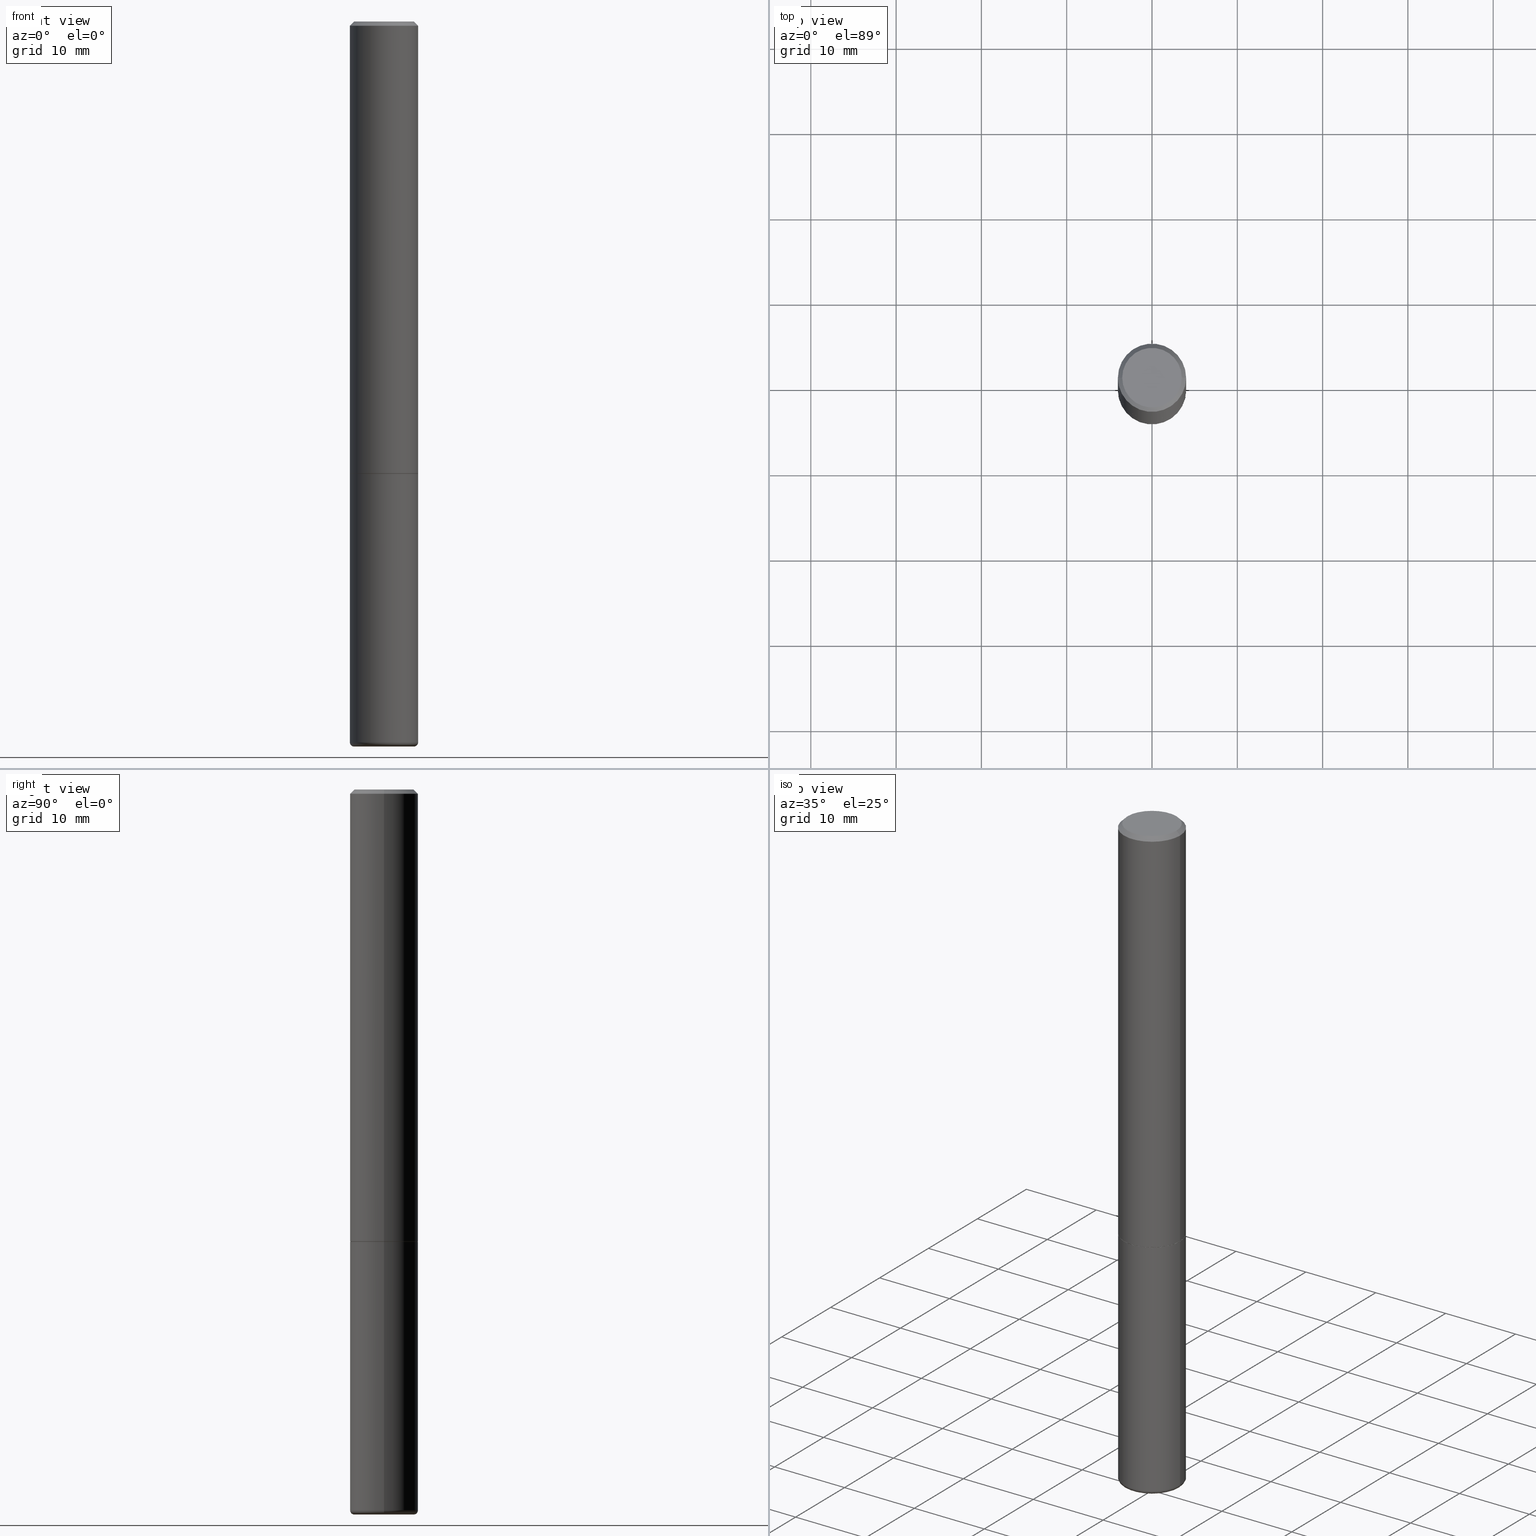
[diagram: canonical four-view strip — front | top / right | iso, engineering-drawing reading convention]
A machine part, canonical four-view strip (front | top / right | iso — engineering-drawing reading convention). The complete STEP part file that produces these views, byte-faithful:
ISO-10303-21;
HEADER;
FILE_DESCRIPTION (( 'STEP AP203' ),
    '1' );
FILE_NAME ('74387.STEP',
    '2024-03-06T15:10:27',
    ( '' ),
    ( '' ),
    'SwSTEP 2.0',
    'SolidWorks 2023',
    '' );
FILE_SCHEMA (( 'CONFIG_CONTROL_DESIGN' ));
ENDSEC;

DATA;
#1 = CARTESIAN_POINT ( 'NONE',  ( 0.1378000000000000058, -1.257771237504854589E-14, -3.326799999999999979 ) ) ;
#2 =( CONVERSION_BASED_UNIT ( 'INCH', #288 ) LENGTH_UNIT ( ) NAMED_UNIT ( #185 ) );
#3 = DIRECTION ( 'NONE',  ( -2.445468806185136597E-29, 3.491481338843145583E-15, 1.000000000000000000 ) ) ;
#4 = CYLINDRICAL_SURFACE ( 'NONE', #383, 0.1575000000000000289 ) ;
#5 = CLOSED_SHELL ( 'NONE', ( #405, #257, #64, #170, #386, #207, #240, #52 ) ) ;
#6 = LOCAL_TIME ( 10, 10, 27.00000000000000000, #335 ) ;
#7 = DIRECTION ( 'NONE',  ( 1.000000000000000000, -6.982962677686267499E-15, 4.874794762600771100E-29 ) ) ;
#8 = DIRECTION ( 'NONE',  ( 1.000000000000000000, -6.982962677686268288E-15, 0.000000000000000000 ) ) ;
#9 = LINE ( 'NONE', #318, #348 ) ;
#10 = DIRECTION ( 'NONE',  ( -2.445468806185136597E-29, 3.491481338843145583E-15, 1.000000000000000000 ) ) ;
#11 = ORIENTED_EDGE ( 'NONE', *, *, #253, .F. ) ;
#12 = EDGE_LOOP ( 'NONE', ( #302, #375, #109, #175 ) ) ;
#13 = VERTEX_POINT ( 'NONE', #305 ) ;
#14 = CC_DESIGN_PERSON_AND_ORGANIZATION_ASSIGNMENT ( #176, #49, ( #389 ) ) ;
#15 = ORIENTED_EDGE ( 'NONE', *, *, #253, .T. ) ;
#16 = ORIENTED_EDGE ( 'NONE', *, *, #210, .F. ) ;
#17 = ADVANCED_FACE ( 'NONE', ( #47 ), #177, .T. ) ;
#18 = EDGE_LOOP ( 'NONE', ( #300, #166, #243, #22 ) ) ;
#19 = EDGE_LOOP ( 'NONE', ( #238, #81 ) ) ;
#20 = DATE_AND_TIME ( #414, #80 ) ;
#21 = ORIENTED_EDGE ( 'NONE', *, *, #289, .T. ) ;
#22 = ORIENTED_EDGE ( 'NONE', *, *, #189, .T. ) ;
#23 = VECTOR ( 'NONE', #358, 39.37007874015748143 ) ;
#24 = LOCAL_TIME ( 10, 10, 27.00000000000000000, #171 ) ;
#25 = APPROVAL_DATE_TIME ( #198, #351 ) ;
#26 = CARTESIAN_POINT ( 'NONE',  ( 4.890937612370281041E-31, -6.982962677686302702E-17, -0.02000000000000003511 ) ) ;
#27 = CARTESIAN_POINT ( 'NONE',  ( -0.1574999999999999456, -1.049635530924122081E-14, -3.326799999999999979 ) ) ;
#28 = CLOSED_SHELL ( 'NONE', ( #334, #123, #156, #287, #122, #17 ) ) ;
#29 = CIRCLE ( 'NONE', #384, 0.1575000000000000289 ) ;
#30 = TOROIDAL_SURFACE ( 'NONE', #398, 0.1378000000000000058, 0.01969999999999991203 ) ;
#31 = CC_DESIGN_APPROVAL ( #351, ( #129 ) ) ;
#32 = PERSON ( 'UNSPECIFIED', 'UNSPECIFIED', 'UNSPECIFIED', ('UNSPECIFIED'), ('UNSPECIFIED'), ('UNSPECIFIED') ) ;
#33 = DIRECTION ( 'NONE',  ( 2.438088387897960049E-29, -3.491481338843145188E-15, -1.000000000000000000 ) ) ;
#34 =( NAMED_UNIT ( * ) PLANE_ANGLE_UNIT ( ) SI_UNIT ( $, .RADIAN. ) );
#35 = CARTESIAN_POINT ( 'NONE',  ( 5.102959757866523939E-29, -7.285674109763990928E-15, -2.086699999999999999 ) ) ;
#36 = DIRECTION ( 'NONE',  ( -2.445468806185136597E-29, 3.491481338843145583E-15, 1.000000000000000000 ) ) ;
#37 = DIRECTION ( 'NONE',  ( -0.7071067811865473507, 2.468850131082255483E-15, -0.7071067811865475727 ) ) ;
#38 = CARTESIAN_POINT ( 'NONE',  ( 0.000000000000000000, 0.000000000000000000, 0.000000000000000000 ) ) ;
#39 = DIRECTION ( 'NONE',  ( 1.000000000000000000, -6.982962677686267499E-15, 4.876176775795935232E-29 ) ) ;
#40 = CIRCLE ( 'NONE', #311, 0.1575000000000000011 ) ;
#41 =( LENGTH_UNIT ( ) NAMED_UNIT ( * ) SI_UNIT ( $, .METRE. ) );
#42 = DIRECTION ( 'NONE',  ( -2.445468806185136597E-29, 3.491481338843145583E-15, 1.000000000000000000 ) ) ;
#43 = VERTEX_POINT ( 'NONE', #268 ) ;
#44 = ORIENTED_EDGE ( 'NONE', *, *, #159, .F. ) ;
#45 = DIRECTION ( 'NONE',  ( 1.000000000000000000, -6.982962677686265922E-15, 0.000000000000000000 ) ) ;
#46 = AXIS2_PLACEMENT_3D ( 'NONE', #225, #295, #394 ) ;
#47 = FACE_OUTER_BOUND ( 'NONE', #364, .T. ) ;
#48 = ORIENTED_EDGE ( 'NONE', *, *, #392, .F. ) ;
#49 = PERSON_AND_ORGANIZATION_ROLE ( 'design_supplier' ) ;
#50 = ORIENTED_EDGE ( 'NONE', *, *, #409, .T. ) ;
#51 = COORDINATED_UNIVERSAL_TIME_OFFSET ( 5, 0, .BEHIND. ) ;
#52 = ADVANCED_FACE ( 'NONE', ( #160 ), #157, .F. ) ;
#53 = PRODUCT_DEFINITION_SHAPE ( 'NONE', 'NONE',  #129 ) ;
#54 = ORIENTED_EDGE ( 'NONE', *, *, #56, .F. ) ;
#55 = APPROVAL_DATE_TIME ( #306, #368 ) ;
#56 = EDGE_CURVE ( 'NONE', #337, #404, #247, .T. ) ;
#57 = CARTESIAN_POINT ( 'NONE',  ( -0.1575000000000000289, 1.029986994958724182E-15, -0.02000000000000003511 ) ) ;
#58 = TOROIDAL_SURFACE ( 'NONE', #293, 0.1378000000000000058, 0.01969999999999991203 ) ;
#59 = EDGE_CURVE ( 'NONE', #248, #99, #167, .T. ) ;
#60 = DIRECTION ( 'NONE',  ( -2.445468806185136877E-29, 3.491481338843145188E-15, 1.000000000000000000 ) ) ;
#61 = CIRCLE ( 'NONE', #46, 0.1575000000000000289 ) ;
#62 = FACE_OUTER_BOUND ( 'NONE', #410, .T. ) ;
#63 = DIRECTION ( 'NONE',  ( -2.445468806185136597E-29, 3.491481338843145583E-15, 1.000000000000000000 ) ) ;
#64 = ADVANCED_FACE ( 'NONE', ( #197 ), #101, .T. ) ;
#65 = DIRECTION ( 'NONE',  ( 1.000000000000000000, -6.982962677686267499E-15, 0.000000000000000000 ) ) ;
#66 = EDGE_CURVE ( 'NONE', #211, #404, #61, .T. ) ;
#67 = CARTESIAN_POINT ( 'NONE',  ( -0.1565000000000000002, -6.168376273951211931E-15, -2.086699999999999999 ) ) ;
#68 = DIRECTION ( 'NONE',  ( -2.445468806185136597E-29, 3.491481338843145583E-15, 1.000000000000000000 ) ) ;
#69 = DIRECTION ( 'NONE',  ( 1.000000000000000000, -6.982962677686265922E-15, 4.876176775795935793E-29 ) ) ;
#70 = FACE_OUTER_BOUND ( 'NONE', #12, .T. ) ;
#71 = DIRECTION ( 'NONE',  ( -2.445468806185136597E-29, 3.491481338843145583E-15, 1.000000000000000000 ) ) ;
#72 = ORIENTED_EDGE ( 'NONE', *, *, #355, .F. ) ;
#73 = DIRECTION ( 'NONE',  ( 2.445468806185136597E-29, -3.491481338843145583E-15, -1.000000000000000000 ) ) ;
#74 = PERSON_AND_ORGANIZATION ( #32, #194 ) ;
#75 = CARTESIAN_POINT ( 'NONE',  ( 0.1575000000000001954, -8.381999250160736190E-15, -2.085699999999999665 ) ) ;
#76 = APPROVAL_STATUS ( 'not_yet_approved' ) ;
#77 = CIRCLE ( 'NONE', #86, 0.1575000000000000289 ) ;
#78 = ORIENTED_EDGE ( 'NONE', *, *, #66, .T. ) ;
#79 = ORIENTED_EDGE ( 'NONE', *, *, #217, .T. ) ;
#80 = LOCAL_TIME ( 10, 10, 27.00000000000000000, #365 ) ;
#81 = ORIENTED_EDGE ( 'NONE', *, *, #134, .T. ) ;
#82 = EDGE_LOOP ( 'NONE', ( #21, #203, #84, #54 ) ) ;
#83 = SHAPE_DEFINITION_REPRESENTATION ( #53, #301 ) ;
#84 = ORIENTED_EDGE ( 'NONE', *, *, #409, .F. ) ;
#85 = CARTESIAN_POINT ( 'NONE',  ( -0.1565000000000000002, -6.173674728299434333E-15, -2.086699999999999999 ) ) ;
#86 = AXIS2_PLACEMENT_3D ( 'NONE', #163, #36, #227 ) ;
#87 = CARTESIAN_POINT ( 'NONE',  ( -4.906101647375532782E-45, 7.004612900788102525E-31, 2.006200870347193393E-16 ) ) ;
#88 = CARTESIAN_POINT ( 'NONE',  ( 0.1565000000000000002, -8.378507768821891605E-15, -2.086699999999999999 ) ) ;
#89 = EDGE_CURVE ( 'NONE', #317, #178, #90, .T. ) ;
#90 = CIRCLE ( 'NONE', #154, 0.1565000000000000002 ) ;
#91 = LOCAL_TIME ( 10, 10, 27.00000000000000000, #51 ) ;
#92 = DIRECTION ( 'NONE',  ( 1.000000000000000000, -6.982962677686268288E-15, 0.000000000000000000 ) ) ;
#93 = AXIS2_PLACEMENT_3D ( 'NONE', #241, #3, #45 ) ;
#94 = PRODUCT_RELATED_PRODUCT_CATEGORY ( 'detail', '', ( #400 ) ) ;
#95 = DIRECTION ( 'NONE',  ( -2.445468806185136597E-29, 3.491481338843145583E-15, 1.000000000000000000 ) ) ;
#96 = DIRECTION ( 'NONE',  ( -2.445468806185136597E-29, 3.491481338843145583E-15, 1.000000000000000000 ) ) ;
#97 = CARTESIAN_POINT ( 'NONE',  ( 5.102959757866523939E-29, -7.285674109763990928E-15, -2.086699999999999999 ) ) ;
#98 = DIRECTION ( 'NONE',  ( -6.982962677686266711E-15, -1.000000000000000000, 3.491481338843145583E-15 ) ) ;
#99 = VERTEX_POINT ( 'NONE', #236 ) ;
#100 = CARTESIAN_POINT ( 'NONE',  ( -4.906101647375532782E-45, 7.004612900788102525E-31, 2.006200870347193393E-16 ) ) ;
#101 = CONICAL_SURFACE ( 'NONE', #152, 0.1575000000000000289, 0.7853981633974481680 ) ;
#102 = LINE ( 'NONE', #196, #262 ) ;
#103 = ORIENTED_EDGE ( 'NONE', *, *, #89, .F. ) ;
#104 = CYLINDRICAL_SURFACE ( 'NONE', #320, 0.1575000000000000844 ) ;
#105 = ORIENTED_EDGE ( 'NONE', *, *, #324, .T. ) ;
#106 = DATE_AND_TIME ( #406, #6 ) ;
#107 = ORIENTED_EDGE ( 'NONE', *, *, #151, .T. ) ;
#108 = EDGE_CURVE ( 'NONE', #204, #208, #328, .T. ) ;
#109 = ORIENTED_EDGE ( 'NONE', *, *, #56, .T. ) ;
#110 = DIRECTION ( 'NONE',  ( -2.445468806185136597E-29, 3.491481338843145583E-15, 1.000000000000000000 ) ) ;
#111 = CIRCLE ( 'NONE', #138, 0.1575000000000000289 ) ;
#112 = EDGE_LOOP ( 'NONE', ( #44, #341, #273, #169 ) ) ;
#113 = ORIENTED_EDGE ( 'NONE', *, *, #89, .T. ) ;
#114 = CIRCLE ( 'NONE', #161, 0.1374999999999997891 ) ;
#115 = PERSON_AND_ORGANIZATION_ROLE ( 'design_owner' ) ;
#116 = EDGE_LOOP ( 'NONE', ( #50, #105, #242, #173 ) ) ;
#117 = CARTESIAN_POINT ( 'NONE',  ( 5.102959757866523939E-29, -7.285674109763990928E-15, -2.086699999999999999 ) ) ;
#118 = AXIS2_PLACEMENT_3D ( 'NONE', #100, #68, #7 ) ;
#119 = CARTESIAN_POINT ( 'NONE',  ( -0.1374999999999997891, 9.950721815702925329E-16, 2.006200870347125108E-16 ) ) ;
#120 = APPROVAL_PERSON_ORGANIZATION ( #74, #368, #174 ) ;
#121 = DIRECTION ( 'NONE',  ( 1.000000000000000000, -6.982962677686267499E-15, 4.874794762600771100E-29 ) ) ;
#122 = ADVANCED_FACE ( 'NONE', ( #70 ), #58, .T. ) ;
#123 = ADVANCED_FACE ( 'NONE', ( #350 ), #30, .T. ) ;
#124 = DIRECTION ( 'NONE',  ( -2.445468806185136597E-29, 3.491481338843145583E-15, 1.000000000000000000 ) ) ;
#125 = AXIS2_PLACEMENT_3D ( 'NONE', #97, #231, #299 ) ;
#126 = SECURITY_CLASSIFICATION ( '', '', #308 ) ;
#127 = CARTESIAN_POINT ( 'NONE',  ( 4.890937612370281041E-31, -6.982962677686302702E-17, -0.02000000000000003511 ) ) ;
#128 = MANIFOLD_SOLID_BREP ( 'Body-Move/Copy2[2]', #5 ) ;
#129 = PRODUCT_DEFINITION ( 'UNKNOWN', '', #389, #331 ) ;
#130 = DIRECTION ( 'NONE',  ( 1.000000000000000000, -6.982962677686265922E-15, 0.000000000000000000 ) ) ;
#131 = AXIS2_PLACEMENT_3D ( 'NONE', #199, #139, #230 ) ;
#132 = EDGE_CURVE ( 'NONE', #178, #248, #228, .T. ) ;
#133 = DIRECTION ( 'NONE',  ( 7.105427357601001859E-15, 1.000000000000000000, -3.491481338843145583E-15 ) ) ;
#134 = EDGE_CURVE ( 'NONE', #245, #137, #271, .T. ) ;
#135 = DIRECTION ( 'NONE',  ( 1.000000000000000000, 0.000000000000000000, 0.000000000000000000 ) ) ;
#136 = FACE_OUTER_BOUND ( 'NONE', #112, .T. ) ;
#137 = VERTEX_POINT ( 'NONE', #259 ) ;
#138 = AXIS2_PLACEMENT_3D ( 'NONE', #26, #347, #218 ) ;
#139 = DIRECTION ( 'NONE',  ( -2.445468806185136597E-29, 3.491481338843145583E-15, 1.000000000000000000 ) ) ;
#140 = ORIENTED_EDGE ( 'NONE', *, *, #159, .T. ) ;
#141 = APPLICATION_PROTOCOL_DEFINITION ( 'international standard', 'config_control_design', 1994, #282 ) ;
#142 = ORIENTED_EDGE ( 'NONE', *, *, #324, .F. ) ;
#143 = EDGE_CURVE ( 'NONE', #99, #208, #77, .T. ) ;
#144 = ORIENTED_EDGE ( 'NONE', *, *, #134, .F. ) ;
#145 = PERSON_AND_ORGANIZATION ( #32, #194 ) ;
#146 = APPLICATION_CONTEXT ( 'configuration controlled 3d designs of mechanical parts and assemblies' ) ;
#147 = CIRCLE ( 'NONE', #352, 0.1378000000000000058 ) ;
#148 = CC_DESIGN_SECURITY_CLASSIFICATION ( #126, ( #389 ) ) ;
#149 = DIRECTION ( 'NONE',  ( -1.000000000000000000, 6.982962677686265922E-15, -4.876176775795935793E-29 ) ) ;
#150 = PERSON_AND_ORGANIZATION ( #32, #194 ) ;
#151 = EDGE_CURVE ( 'NONE', #204, #307, #319, .T. ) ;
#152 = AXIS2_PLACEMENT_3D ( 'NONE', #390, #223, #232 ) ;
#153 = DIRECTION ( 'NONE',  ( 1.000000000000000000, -6.982962677686267499E-15, 0.000000000000000000 ) ) ;
#154 = AXIS2_PLACEMENT_3D ( 'NONE', #396, #95, #353 ) ;
#155 = CC_DESIGN_PERSON_AND_ORGANIZATION_ASSIGNMENT ( #201, #413, ( #129 ) ) ;
#156 = ADVANCED_FACE ( 'NONE', ( #265 ), #393, .F. ) ;
#157 = PLANE ( 'NONE',  #188 ) ;
#158 = DIRECTION ( 'NONE',  ( -2.445468806185136597E-29, 3.491481338843145583E-15, 1.000000000000000000 ) ) ;
#159 = EDGE_CURVE ( 'NONE', #43, #208, #9, .T. ) ;
#160 = FACE_OUTER_BOUND ( 'NONE', #399, .T. ) ;
#161 = AXIS2_PLACEMENT_3D ( 'NONE', #87, #110, #121 ) ;
#162 = CARTESIAN_POINT ( 'NONE',  ( 0.000000000000000000, 0.000000000000000000, 0.000000000000000000 ) ) ;
#163 = CARTESIAN_POINT ( 'NONE',  ( 4.890937612370281041E-31, -6.982962677686302702E-17, -0.02000000000000003511 ) ) ;
#164 =( NAMED_UNIT ( * ) SI_UNIT ( $, .STERADIAN. ) SOLID_ANGLE_UNIT ( ) );
#165 = FACE_OUTER_BOUND ( 'NONE', #246, .T. ) ;
#166 = ORIENTED_EDGE ( 'NONE', *, *, #151, .F. ) ;
#167 = LINE ( 'NONE', #401, #202 ) ;
#168 = DIRECTION ( 'NONE',  ( 1.000000000000000000, -6.982962677686265922E-15, 0.000000000000000000 ) ) ;
#169 = ORIENTED_EDGE ( 'NONE', *, *, #189, .F. ) ;
#170 = ADVANCED_FACE ( 'NONE', ( #222 ), #292, .T. ) ;
#171 = COORDINATED_UNIVERSAL_TIME_OFFSET ( 5, 0, .BEHIND. ) ;
#172 = VECTOR ( 'NONE', #37, 39.37007874015748854 ) ;
#173 = ORIENTED_EDGE ( 'NONE', *, *, #205, .F. ) ;
#174 = APPROVAL_ROLE ( '' ) ;
#175 = ORIENTED_EDGE ( 'NONE', *, *, #66, .F. ) ;
#176 = PERSON_AND_ORGANIZATION ( #32, #194 ) ;
#177 = PLANE ( 'NONE',  #235 ) ;
#178 = VERTEX_POINT ( 'NONE', #88 ) ;
#179 = CIRCLE ( 'NONE', #345, 0.01969999999999989468 ) ;
#180 =( GEOMETRIC_REPRESENTATION_CONTEXT ( 3 ) GLOBAL_UNCERTAINTY_ASSIGNED_CONTEXT ( ( #403 ) ) GLOBAL_UNIT_ASSIGNED_CONTEXT ( ( #2, #34, #164 ) ) REPRESENTATION_CONTEXT ( 'NONE', 'WORKASPACE' ) );
#181 = FACE_OUTER_BOUND ( 'NONE', #309, .T. ) ;
#182 = DIRECTION ( 'NONE',  ( 1.000000000000000000, -6.982962677686265922E-15, 0.000000000000000000 ) ) ;
#183 = CIRCLE ( 'NONE', #193, 0.1378000000000000058 ) ;
#184 = AXIS2_PLACEMENT_3D ( 'NONE', #272, #71, #168 ) ;
#185 = DIMENSIONAL_EXPONENTS ( 1.000000000000000000, 0.000000000000000000, 0.000000000000000000, 0.000000000000000000, 0.000000000000000000, 0.000000000000000000, 0.000000000000000000 ) ;
#186 = DIRECTION ( 'NONE',  ( 0.7071067811865957564, -2.468850131082761932E-15, 0.7071067811864992780 ) ) ;
#187 = CC_DESIGN_PERSON_AND_ORGANIZATION_ASSIGNMENT ( #150, #115, ( #400 ) ) ;
#188 = AXIS2_PLACEMENT_3D ( 'NONE', #266, #33, #356 ) ;
#189 = EDGE_CURVE ( 'NONE', #208, #99, #111, .T. ) ;
#190 = CARTESIAN_POINT ( 'NONE',  ( 8.135585624416713045E-29, -1.161546011806337842E-14, -3.326799999999999979 ) ) ;
#191 = CARTESIAN_POINT ( 'NONE',  ( 8.135585624416713045E-29, -1.161546011806337842E-14, -3.326799999999999979 ) ) ;
#192 = CARTESIAN_POINT ( 'NONE',  ( 0.1378000000000000058, -1.264649455742375392E-14, -3.346499999999999808 ) ) ;
#193 = AXIS2_PLACEMENT_3D ( 'NONE', #354, #10, #130 ) ;
#194 = ORGANIZATION ( 'UNSPECIFIED', 'UNSPECIFIED', '' ) ;
#195 = DIRECTION ( 'NONE',  ( -2.445468806185136597E-29, 3.491481338843145583E-15, 1.000000000000000000 ) ) ;
#196 = CARTESIAN_POINT ( 'NONE',  ( 0.1575000000000000289, -1.150358061425879472E-15, -0.02000000000000003511 ) ) ;
#197 = FACE_OUTER_BOUND ( 'NONE', #332, .T. ) ;
#198 = DATE_AND_TIME ( #274, #24 ) ;
#199 = CARTESIAN_POINT ( 'NONE',  ( 0.000000000000000000, 0.000000000000000000, 0.000000000000000000 ) ) ;
#200 = ORIENTED_EDGE ( 'NONE', *, *, #205, .T. ) ;
#201 = PERSON_AND_ORGANIZATION ( #32, #194 ) ;
#202 = VECTOR ( 'NONE', #260, 39.37007874015748143 ) ;
#203 = ORIENTED_EDGE ( 'NONE', *, *, #346, .T. ) ;
#204 = VERTEX_POINT ( 'NONE', #119 ) ;
#205 = EDGE_CURVE ( 'NONE', #404, #137, #215, .T. ) ;
#206 = APPROVAL_ROLE ( '' ) ;
#207 = ADVANCED_FACE ( 'NONE', ( #181 ), #379, .T. ) ;
#208 = VERTEX_POINT ( 'NONE', #57 ) ;
#209 = DATE_AND_TIME ( #408, #91 ) ;
#210 = EDGE_CURVE ( 'NONE', #13, #337, #147, .T. ) ;
#211 = VERTEX_POINT ( 'NONE', #27 ) ;
#212 = FACE_OUTER_BOUND ( 'NONE', #251, .T. ) ;
#213 = APPROVAL_STATUS ( 'not_yet_approved' ) ;
#214 = VECTOR ( 'NONE', #186, 39.37007874015748143 ) ;
#215 = LINE ( 'NONE', #381, #219 ) ;
#216 = DIRECTION ( 'NONE',  ( 1.000000000000000000, -6.982962677686267499E-15, 0.000000000000000000 ) ) ;
#217 = EDGE_CURVE ( 'NONE', #178, #317, #315, .T. ) ;
#218 = DIRECTION ( 'NONE',  ( 1.000000000000000000, -6.982962677686267499E-15, 0.000000000000000000 ) ) ;
#219 = VECTOR ( 'NONE', #378, 39.37007874015748143 ) ;
#220 = APPROVAL_PERSON_ORGANIZATION ( #342, #351, #206 ) ;
#221 = CARTESIAN_POINT ( 'NONE',  ( 0.1565000000000000002, -8.378507768821891605E-15, -2.086699999999999999 ) ) ;
#222 = FACE_OUTER_BOUND ( 'NONE', #18, .T. ) ;
#223 = DIRECTION ( 'NONE',  ( 2.445468806185136597E-29, -3.491481338843145583E-15, -1.000000000000000000 ) ) ;
#224 = AXIS2_PLACEMENT_3D ( 'NONE', #117, #314, #153 ) ;
#225 = CARTESIAN_POINT ( 'NONE',  ( 8.135585624416713045E-29, -1.161546011806337842E-14, -3.326799999999999979 ) ) ;
#226 = CYLINDRICAL_SURFACE ( 'NONE', #418, 0.1575000000000000289 ) ;
#227 = DIRECTION ( 'NONE',  ( 1.000000000000000000, -6.982962677686267499E-15, 0.000000000000000000 ) ) ;
#228 = LINE ( 'NONE', #221, #214 ) ;
#229 = DIRECTION ( 'NONE',  ( 1.000000000000000000, -6.982962677686273810E-15, 0.000000000000000000 ) ) ;
#230 = DIRECTION ( 'NONE',  ( 1.000000000000000000, -6.982962677686267499E-15, 4.876176775795936353E-29 ) ) ;
#231 = DIRECTION ( 'NONE',  ( 2.438088387897960049E-29, -3.491481338843145188E-15, -1.000000000000000000 ) ) ;
#232 = DIRECTION ( 'NONE',  ( -1.000000000000000000, 6.982962677686267499E-15, 0.000000000000000000 ) ) ;
#233 = CARTESIAN_POINT ( 'NONE',  ( 5.102959757866523939E-29, -7.285674109763990928E-15, -2.086699999999999999 ) ) ;
#234 = DIRECTION ( 'NONE',  ( 1.000000000000000000, -6.982962677686267499E-15, 4.876176775795935232E-29 ) ) ;
#235 = AXIS2_PLACEMENT_3D ( 'NONE', #407, #369, #149 ) ;
#236 = CARTESIAN_POINT ( 'NONE',  ( 0.1575000000000000289, -1.150358061425879472E-15, -0.02000000000000003511 ) ) ;
#237 = CARTESIAN_POINT ( 'NONE',  ( 0.000000000000000000, 0.000000000000000000, 0.000000000000000000 ) ) ;
#238 = ORIENTED_EDGE ( 'NONE', *, *, #374, .T. ) ;
#239 = EDGE_CURVE ( 'NONE', #317, #43, #376, .T. ) ;
#240 = ADVANCED_FACE ( 'NONE', ( #212 ), #312, .F. ) ;
#241 = CARTESIAN_POINT ( 'NONE',  ( 5.100514289060338336E-29, -7.282182628425147921E-15, -2.085699999999999665 ) ) ;
#242 = ORIENTED_EDGE ( 'NONE', *, *, #374, .F. ) ;
#243 = ORIENTED_EDGE ( 'NONE', *, *, #108, .T. ) ;
#244 = PERSON_AND_ORGANIZATION ( #32, #194 ) ;
#245 = VERTEX_POINT ( 'NONE', #291 ) ;
#246 = EDGE_LOOP ( 'NONE', ( #15, #140, #343, #338 ) ) ;
#247 = CIRCLE ( 'NONE', #252, 0.01969999999999989468 ) ;
#248 = VERTEX_POINT ( 'NONE', #75 ) ;
#249 = DIRECTION ( 'NONE',  ( 1.000000000000000000, -6.982962677686266711E-15, 4.883557194083113462E-29 ) ) ;
#250 = APPROVAL_STATUS ( 'not_yet_approved' ) ;
#251 = EDGE_LOOP ( 'NONE', ( #276, #103 ) ) ;
#252 = AXIS2_PLACEMENT_3D ( 'NONE', #1, #98, #263 ) ;
#253 = EDGE_CURVE ( 'NONE', #248, #43, #361, .T. ) ;
#254 = CARTESIAN_POINT ( 'NONE',  ( 8.183761359898559783E-29, -1.168424230043858645E-14, -3.346499999999999808 ) ) ;
#255 = CARTESIAN_POINT ( 'NONE',  ( 0.1574999999999999456, -1.271527673979896669E-14, -3.326799999999999979 ) ) ;
#256 = CC_DESIGN_DATE_AND_TIME_ASSIGNMENT ( #106, #377, ( #129 ) ) ;
#257 = ADVANCED_FACE ( 'NONE', ( #165 ), #297, .T. ) ;
#258 = CC_DESIGN_APPROVAL ( #416, ( #389 ) ) ;
#259 = CARTESIAN_POINT ( 'NONE',  ( 0.1575000000000000011, -8.385490731499577619E-15, -2.086699999999999999 ) ) ;
#260 = DIRECTION ( 'NONE',  ( -2.445468806185136877E-29, 3.491481338843145188E-15, 1.000000000000000000 ) ) ;
#261 = CARTESIAN_POINT ( 'NONE',  ( 0.1374999999999997891, -1.046838268059731505E-15, 2.006200870347263405E-16 ) ) ;
#262 = VECTOR ( 'NONE', #397, 39.37007874015748854 ) ;
#263 = DIRECTION ( 'NONE',  ( 1.000000000000000000, -6.982962677686266711E-15, 0.000000000000000000 ) ) ;
#264 = CARTESIAN_POINT ( 'NONE',  ( -0.1575000000000000289, 1.119104808822157998E-15, -7.747322767151478386E-30 ) ) ;
#265 = FACE_OUTER_BOUND ( 'NONE', #19, .T. ) ;
#266 = CARTESIAN_POINT ( 'NONE',  ( 9.601573681818600950E-16, 0.1374999999999997891, -3.797686405735721404E-16 ) ) ;
#267 = CARTESIAN_POINT ( 'NONE',  ( 0.000000000000000000, 0.000000000000000000, 0.000000000000000000 ) ) ;
#268 = CARTESIAN_POINT ( 'NONE',  ( -0.1575000000000001954, -2.556901318778844062E-15, -2.085699999999999665 ) ) ;
#269 = LINE ( 'NONE', #264, #23 ) ;
#270 = ORIENTED_EDGE ( 'NONE', *, *, #132, .F. ) ;
#271 = CIRCLE ( 'NONE', #388, 0.1575000000000000011 ) ;
#272 = CARTESIAN_POINT ( 'NONE',  ( 5.100514289060338336E-29, -7.282182628425147921E-15, -2.085699999999999665 ) ) ;
#273 = ORIENTED_EDGE ( 'NONE', *, *, #59, .T. ) ;
#274 = CALENDAR_DATE ( 2024, 6, 3 ) ;
#275 = EDGE_CURVE ( 'NONE', #307, #99, #102, .T. ) ;
#276 = ORIENTED_EDGE ( 'NONE', *, *, #217, .F. ) ;
#277 = APPROVAL_ROLE ( '' ) ;
#278 = ORIENTED_EDGE ( 'NONE', *, *, #289, .F. ) ;
#279 = DATE_TIME_ROLE ( 'classification_date' ) ;
#280 = AXIS2_PLACEMENT_3D ( 'NONE', #127, #73, #415 ) ;
#281 = AXIS2_PLACEMENT_3D ( 'NONE', #233, #195, #65 ) ;
#282 = APPLICATION_CONTEXT ( 'configuration controlled 3d designs of mechanical parts and assemblies' ) ;
#283 = PERSON_AND_ORGANIZATION_ROLE ( 'creator' ) ;
#284 = CC_DESIGN_PERSON_AND_ORGANIZATION_ASSIGNMENT ( #244, #344, ( #126 ) ) ;
#285 = CC_DESIGN_PERSON_AND_ORGANIZATION_ASSIGNMENT ( #339, #283, ( #389 ) ) ;
#286 = AXIS2_PLACEMENT_3D ( 'NONE', #322, #360, #69 ) ;
#287 = ADVANCED_FACE ( 'NONE', ( #327 ), #4, .T. ) ;
#288 = LENGTH_MEASURE_WITH_UNIT ( LENGTH_MEASURE( 0.02539999999999999897 ), #41 );
#289 = EDGE_CURVE ( 'NONE', #337, #13, #183, .T. ) ;
#290 = DIRECTION ( 'NONE',  ( -2.445468806185136597E-29, 3.491481338843145583E-15, 1.000000000000000000 ) ) ;
#291 = CARTESIAN_POINT ( 'NONE',  ( -0.1575000000000000011, -8.331462305091527069E-15, -2.086699999999999999 ) ) ;
#292 = CONICAL_SURFACE ( 'NONE', #280, 0.1575000000000000289, 0.7853981633974481680 ) ;
#293 = AXIS2_PLACEMENT_3D ( 'NONE', #190, #290, #321 ) ;
#294 = CIRCLE ( 'NONE', #184, 0.1575000000000001954 ) ;
#295 = DIRECTION ( 'NONE',  ( -2.445468806185136597E-29, 3.491481338843145583E-15, 1.000000000000000000 ) ) ;
#296 = DIRECTION ( 'NONE',  ( 0.000000000000000000, 0.000000000000000000, 1.000000000000000000 ) ) ;
#297 = CYLINDRICAL_SURFACE ( 'NONE', #131, 0.1575000000000000844 ) ;
#298 = ORIENTED_EDGE ( 'NONE', *, *, #108, .F. ) ;
#299 = DIRECTION ( 'NONE',  ( -1.000000000000000000, 6.982962677686265922E-15, -4.876176775795935793E-29 ) ) ;
#300 = ORIENTED_EDGE ( 'NONE', *, *, #275, .F. ) ;
#301 = ADVANCED_BREP_SHAPE_REPRESENTATION ( '74387', ( #417, #128, #349 ), #180 ) ;
#302 = ORIENTED_EDGE ( 'NONE', *, *, #346, .F. ) ;
#303 = ORIENTED_EDGE ( 'NONE', *, *, #392, .T. ) ;
#304 = AXIS2_PLACEMENT_3D ( 'NONE', #35, #158, #216 ) ;
#305 = CARTESIAN_POINT ( 'NONE',  ( -0.1378000000000000058, -1.060073485990119567E-14, -3.346499999999999808 ) ) ;
#306 = DATE_AND_TIME ( #367, #371 ) ;
#307 = VERTEX_POINT ( 'NONE', #261 ) ;
#308 = SECURITY_CLASSIFICATION_LEVEL ( 'unclassified' ) ;
#309 = EDGE_LOOP ( 'NONE', ( #333, #113, #372, #72 ) ) ;
#310 = VECTOR ( 'NONE', #382, 39.37007874015748143 ) ;
#311 = AXIS2_PLACEMENT_3D ( 'NONE', #402, #96, #8 ) ;
#312 = PLANE ( 'NONE',  #286 ) ;
#313 = CARTESIAN_POINT ( 'NONE',  ( 5.102959757866523939E-29, -7.285674109763990928E-15, -2.086699999999999999 ) ) ;
#314 = DIRECTION ( 'NONE',  ( -2.445468806185136597E-29, 3.491481338843145583E-15, 1.000000000000000000 ) ) ;
#315 = CIRCLE ( 'NONE', #224, 0.1565000000000000002 ) ;
#316 = CONICAL_SURFACE ( 'NONE', #281, 0.1565000000000000002, 0.7853981633975165577 ) ;
#317 = VERTEX_POINT ( 'NONE', #67 ) ;
#318 = CARTESIAN_POINT ( 'NONE',  ( -0.1575000000000000844, 1.119104808822158392E-15, -7.747322767151481189E-30 ) ) ;
#319 = CIRCLE ( 'NONE', #118, 0.1374999999999997891 ) ;
#320 = AXIS2_PLACEMENT_3D ( 'NONE', #267, #366, #330 ) ;
#321 = DIRECTION ( 'NONE',  ( 1.000000000000000000, -6.982962677686266711E-15, 4.883557194083113462E-29 ) ) ;
#322 = CARTESIAN_POINT ( 'NONE',  ( 5.102959757866523939E-29, -7.285674109763990928E-15, -2.086699999999999999 ) ) ;
#323 = DIRECTION ( 'NONE',  ( -2.445468806185136597E-29, 3.491481338843145583E-15, 1.000000000000000000 ) ) ;
#324 = EDGE_CURVE ( 'NONE', #211, #245, #269, .T. ) ;
#325 = CARTESIAN_POINT ( 'NONE',  ( -0.1378000000000000058, -1.063633222818595933E-14, -3.326799999999999979 ) ) ;
#326 = CC_DESIGN_APPROVAL ( #368, ( #126 ) ) ;
#327 = FACE_OUTER_BOUND ( 'NONE', #340, .T. ) ;
#328 = LINE ( 'NONE', #362, #172 ) ;
#329 = ORIENTED_EDGE ( 'NONE', *, *, #143, .T. ) ;
#330 = DIRECTION ( 'NONE',  ( 1.000000000000000000, -6.982962677686267499E-15, 4.876176775795936353E-29 ) ) ;
#331 = DESIGN_CONTEXT ( 'detailed design', #282, 'design' ) ;
#332 = EDGE_LOOP ( 'NONE', ( #48, #411, #329, #298 ) ) ;
#333 = ORIENTED_EDGE ( 'NONE', *, *, #239, .F. ) ;
#334 = ADVANCED_FACE ( 'NONE', ( #387 ), #226, .T. ) ;
#335 = COORDINATED_UNIVERSAL_TIME_OFFSET ( 5, 0, .BEHIND. ) ;
#336 = CC_DESIGN_DATE_AND_TIME_ASSIGNMENT ( #20, #279, ( #126 ) ) ;
#337 = VERTEX_POINT ( 'NONE', #192 ) ;
#338 = ORIENTED_EDGE ( 'NONE', *, *, #59, .F. ) ;
#339 = PERSON_AND_ORGANIZATION ( #32, #194 ) ;
#340 = EDGE_LOOP ( 'NONE', ( #142, #78, #200, #144 ) ) ;
#341 = ORIENTED_EDGE ( 'NONE', *, *, #355, .T. ) ;
#342 = PERSON_AND_ORGANIZATION ( #32, #194 ) ;
#343 = ORIENTED_EDGE ( 'NONE', *, *, #143, .F. ) ;
#344 = PERSON_AND_ORGANIZATION_ROLE ( 'classification_officer' ) ;
#345 = AXIS2_PLACEMENT_3D ( 'NONE', #325, #133, #391 ) ;
#346 = EDGE_CURVE ( 'NONE', #13, #211, #179, .T. ) ;
#347 = DIRECTION ( 'NONE',  ( -2.445468806185136597E-29, 3.491481338843145583E-15, 1.000000000000000000 ) ) ;
#348 = VECTOR ( 'NONE', #60, 39.37007874015748143 ) ;
#349 = AXIS2_PLACEMENT_3D ( 'NONE', #38, #296, #135 ) ;
#350 = FACE_OUTER_BOUND ( 'NONE', #82, .T. ) ;
#351 = APPROVAL ( #76, 'UNSPECIFIED' ) ;
#352 = AXIS2_PLACEMENT_3D ( 'NONE', #254, #124, #182 ) ;
#353 = DIRECTION ( 'NONE',  ( 1.000000000000000000, -6.982962677686267499E-15, 0.000000000000000000 ) ) ;
#354 = CARTESIAN_POINT ( 'NONE',  ( 8.183761359898559783E-29, -1.168424230043858645E-14, -3.346499999999999808 ) ) ;
#355 = EDGE_CURVE ( 'NONE', #43, #248, #294, .T. ) ;
#356 = DIRECTION ( 'NONE',  ( -1.000000000000000000, 6.982962677686265922E-15, -4.876176775795935793E-29 ) ) ;
#357 = APPLICATION_PROTOCOL_DEFINITION ( 'international standard', 'config_control_design', 1994, #146 ) ;
#358 = DIRECTION ( 'NONE',  ( -2.445468806185136877E-29, 3.491481338843145188E-15, 1.000000000000000000 ) ) ;
#359 = DIRECTION ( 'NONE',  ( -2.445468806185136597E-29, 3.491481338843145583E-15, 1.000000000000000000 ) ) ;
#360 = DIRECTION ( 'NONE',  ( -2.438088387897960049E-29, 3.491481338843145188E-15, 1.000000000000000000 ) ) ;
#361 = CIRCLE ( 'NONE', #93, 0.1575000000000001954 ) ;
#362 = CARTESIAN_POINT ( 'NONE',  ( -0.1575000000000000289, 1.029986994958724182E-15, -0.02000000000000003511 ) ) ;
#363 = DIRECTION ( 'NONE',  ( -2.445468806185136597E-29, 3.491481338843145583E-15, 1.000000000000000000 ) ) ;
#364 = EDGE_LOOP ( 'NONE', ( #278, #16 ) ) ;
#365 = COORDINATED_UNIVERSAL_TIME_OFFSET ( 5, 0, .BEHIND. ) ;
#366 = DIRECTION ( 'NONE',  ( -2.445468806185136597E-29, 3.491481338843145583E-15, 1.000000000000000000 ) ) ;
#367 = CALENDAR_DATE ( 2024, 6, 3 ) ;
#368 = APPROVAL ( #250, 'UNSPECIFIED' ) ;
#369 = DIRECTION ( 'NONE',  ( 2.438088387897960049E-29, -3.491481338843145188E-15, -1.000000000000000000 ) ) ;
#370 = ORIENTED_EDGE ( 'NONE', *, *, #239, .T. ) ;
#371 = LOCAL_TIME ( 10, 10, 27.00000000000000000, #373 ) ;
#372 = ORIENTED_EDGE ( 'NONE', *, *, #132, .T. ) ;
#373 = COORDINATED_UNIVERSAL_TIME_OFFSET ( 5, 0, .BEHIND. ) ;
#374 = EDGE_CURVE ( 'NONE', #137, #245, #40, .T. ) ;
#375 = ORIENTED_EDGE ( 'NONE', *, *, #210, .T. ) ;
#376 = LINE ( 'NONE', #85, #310 ) ;
#377 = DATE_TIME_ROLE ( 'creation_date' ) ;
#378 = DIRECTION ( 'NONE',  ( -2.445468806185136877E-29, 3.491481338843145188E-15, 1.000000000000000000 ) ) ;
#379 = CONICAL_SURFACE ( 'NONE', #304, 0.1565000000000000002, 0.7853981633975165577 ) ;
#380 = APPROVAL_PERSON_ORGANIZATION ( #145, #416, #277 ) ;
#381 = CARTESIAN_POINT ( 'NONE',  ( 0.1575000000000000289, -1.099816621735587283E-15, 7.679978421878599434E-30 ) ) ;
#382 = DIRECTION ( 'NONE',  ( -0.7071067811865957564, 7.493145998870527710E-15, 0.7071067811864992780 ) ) ;
#383 = AXIS2_PLACEMENT_3D ( 'NONE', #162, #42, #234 ) ;
#384 = AXIS2_PLACEMENT_3D ( 'NONE', #385, #359, #229 ) ;
#385 = CARTESIAN_POINT ( 'NONE',  ( 8.135585624416713045E-29, -1.161546011806337842E-14, -3.326799999999999979 ) ) ;
#386 = ADVANCED_FACE ( 'NONE', ( #136 ), #104, .T. ) ;
#387 = FACE_OUTER_BOUND ( 'NONE', #116, .T. ) ;
#388 = AXIS2_PLACEMENT_3D ( 'NONE', #313, #63, #92 ) ;
#389 = PRODUCT_DEFINITION_FORMATION_WITH_SPECIFIED_SOURCE ( 'ANY', '', #400, .NOT_KNOWN. ) ;
#390 = CARTESIAN_POINT ( 'NONE',  ( 4.890937612370281041E-31, -6.982962677686302702E-17, -0.02000000000000003511 ) ) ;
#391 = DIRECTION ( 'NONE',  ( -1.000000000000000000, 7.105427357600965571E-15, 0.000000000000000000 ) ) ;
#392 = EDGE_CURVE ( 'NONE', #307, #204, #114, .T. ) ;
#393 = PLANE ( 'NONE',  #125 ) ;
#394 = DIRECTION ( 'NONE',  ( 1.000000000000000000, -6.982962677686273810E-15, 0.000000000000000000 ) ) ;
#395 = MECHANICAL_CONTEXT ( 'NONE', #146, 'mechanical' ) ;
#396 = CARTESIAN_POINT ( 'NONE',  ( 5.102959757866523939E-29, -7.285674109763990928E-15, -2.086699999999999999 ) ) ;
#397 = DIRECTION ( 'NONE',  ( 0.7071067811865473507, -7.319954787623254468E-15, -0.7071067811865475727 ) ) ;
#398 = AXIS2_PLACEMENT_3D ( 'NONE', #191, #323, #249 ) ;
#399 = EDGE_LOOP ( 'NONE', ( #107, #303 ) ) ;
#400 = PRODUCT ( '74387', '74387', '', ( #395 ) ) ;
#401 = CARTESIAN_POINT ( 'NONE',  ( 0.1575000000000000844, -1.099816621735587677E-15, 7.679978421878603638E-30 ) ) ;
#402 = CARTESIAN_POINT ( 'NONE',  ( 5.102959757866523939E-29, -7.285674109763990928E-15, -2.086699999999999999 ) ) ;
#403 = UNCERTAINTY_MEASURE_WITH_UNIT (LENGTH_MEASURE( 1.000000000000000082E-05 ), #2, 'distance_accuracy_value', 'NONE');
#404 = VERTEX_POINT ( 'NONE', #255 ) ;
#405 = ADVANCED_FACE ( 'NONE', ( #62 ), #316, .T. ) ;
#406 = CALENDAR_DATE ( 2024, 6, 3 ) ;
#407 = CARTESIAN_POINT ( 'NONE',  ( 8.183761359898559783E-29, -1.168424230043858645E-14, -3.346499999999999808 ) ) ;
#408 = CALENDAR_DATE ( 2024, 6, 3 ) ;
#409 = EDGE_CURVE ( 'NONE', #404, #211, #29, .T. ) ;
#410 = EDGE_LOOP ( 'NONE', ( #79, #370, #11, #270 ) ) ;
#411 = ORIENTED_EDGE ( 'NONE', *, *, #275, .T. ) ;
#412 = APPROVAL_DATE_TIME ( #209, #416 ) ;
#413 = PERSON_AND_ORGANIZATION_ROLE ( 'creator' ) ;
#414 = CALENDAR_DATE ( 2024, 6, 3 ) ;
#415 = DIRECTION ( 'NONE',  ( -1.000000000000000000, 6.982962677686267499E-15, 0.000000000000000000 ) ) ;
#416 = APPROVAL ( #213, 'UNSPECIFIED' ) ;
#417 = MANIFOLD_SOLID_BREP ( 'Body-Move/Copy2[1]', #28 ) ;
#418 = AXIS2_PLACEMENT_3D ( 'NONE', #237, #363, #39 ) ;
ENDSEC;
END-ISO-10303-21;
